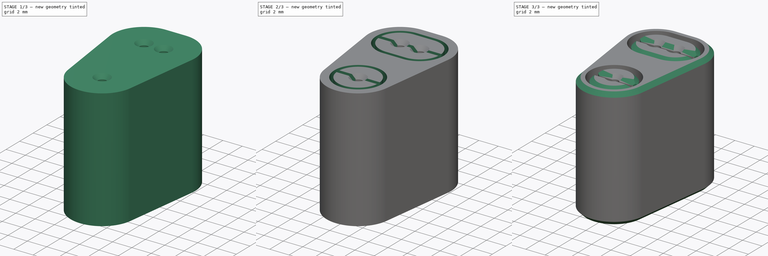
[diagram: build sequence overview — one tinted view per stage of 3, left to right]
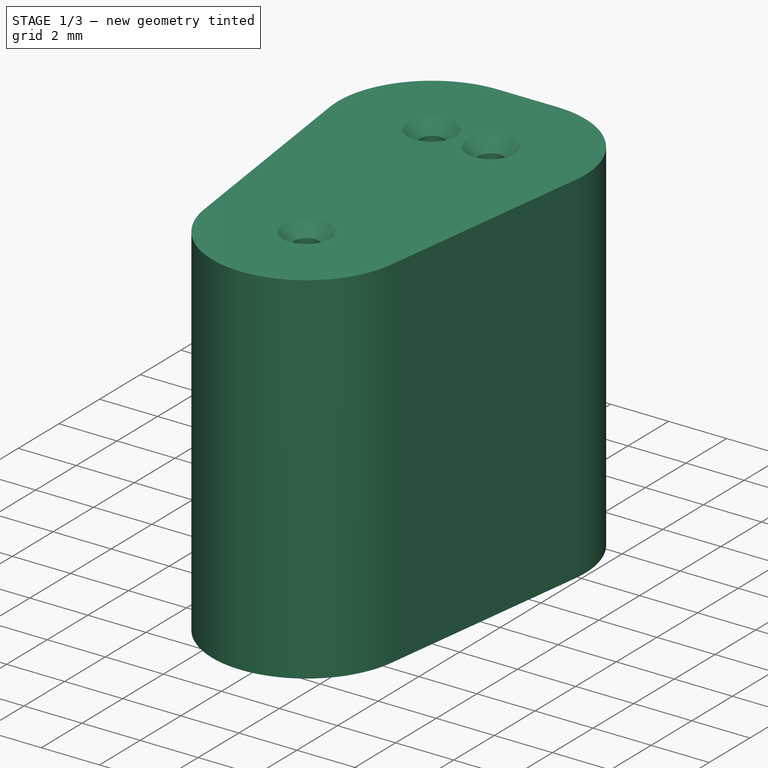
[diagram: stage 1 of 3 — iso view after this stage's code; geometry added in this stage tinted green]
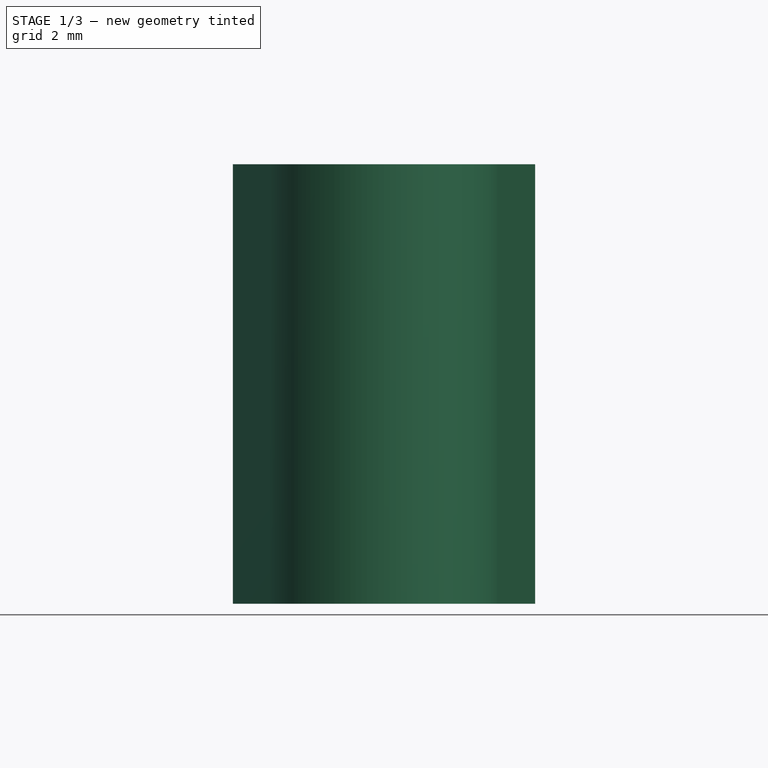
[diagram: stage 1 of 3 — front view after this stage's code; geometry added in this stage tinted green]
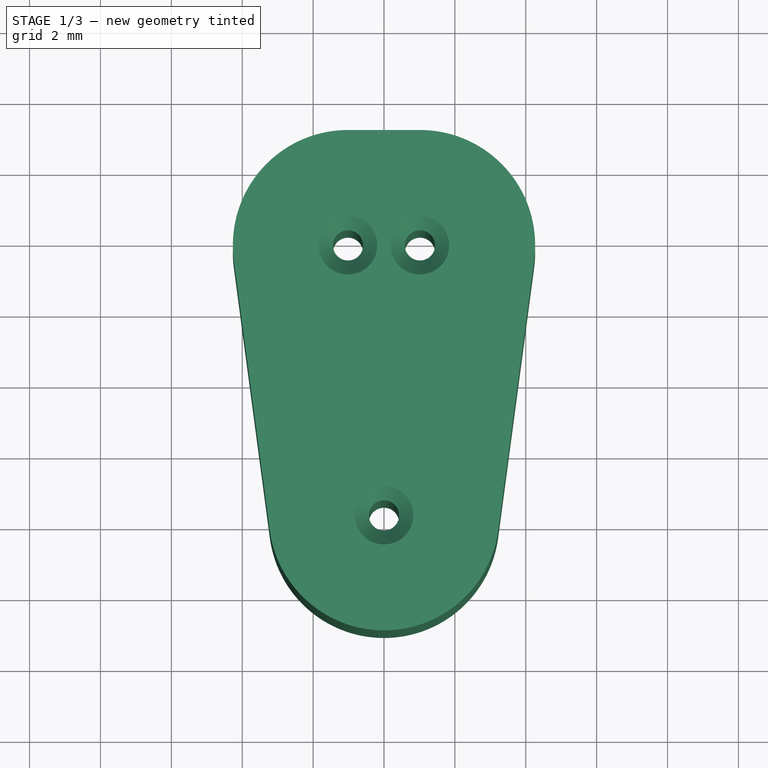
[diagram: stage 1 of 3 — top view after this stage's code; geometry added in this stage tinted green]
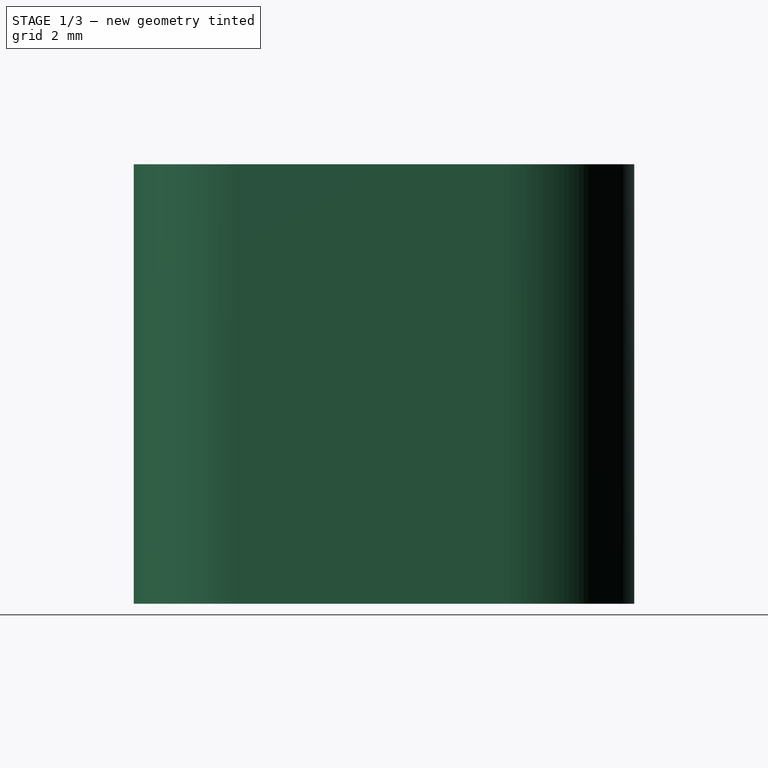
[diagram: stage 1 of 3 — right view after this stage's code; geometry added in this stage tinted green]
FCSTD DOCUMENT  (FreeCAD 1.0R39319 (Git))
Label: TC2050-IDC-NL_lock
License: All rights reserved
LicenseURL: https://en.wikipedia.org/wiki/All_rights_reserved
objects: Sketcher::SketchObject×4, PartDesign::Chamfer×3, PartDesign::Pocket×2, PartDesign::Pad×1, PartDesign::Fillet×1, PartDesign::Body×1
note: 30 computed .brp shape members not serialized (recipe doc carries the construction recipe); baked Part::Feature solids carry a one-line shape summary decoded from their .brp

FEATURE [Sketcher::SketchObject] Sketch001  label="Template"
  ArcFitTolerance = 1e-06
  AttachmentSupport = -> [XY_Plane001]
  FullyConstrained = true
  MakeInternals = false
  MapMode = 5
  sketch-geometry (27):
    g0: Circle CenterX=-1.015 CenterY=3.81 CenterZ=0 NormalX=0 NormalY=0 NormalZ=1 AngleXU=0 Radius=0.7
    g1: Circle CenterX=1.015 CenterY=3.81 CenterZ=0 NormalX=0 NormalY=0 NormalZ=1 AngleXU=0 Radius=0.7
    g2: Circle CenterX=0 CenterY=-3.81 CenterZ=0 NormalX=0 NormalY=0 NormalZ=1 AngleXU=0 Radius=0.7
    g3: LineSegment [constr] StartX=-1.015 StartY=3.81 StartZ=0 EndX=1.015 EndY=3.81 EndZ=0
    g4: LineSegment [constr] StartX=0 StartY=-3.81 StartZ=0 EndX=0 EndY=3.81 EndZ=0
    g5: LineSegment [constr] StartX=-1.70887 StartY=3.71757 StartZ=0 EndX=-0.693871 EndY=-3.90243 EndZ=0
    g6: LineSegment [constr] StartX=1.70887 StartY=3.71757 StartZ=0 EndX=0.693871 EndY=-3.90243 EndZ=0
    g7: LineSegment StartX=-4.23655 StartY=3.38088 StartZ=0 EndX=-3.22155 EndY=-4.23912 EndZ=0
    g8: LineSegment StartX=3.22155 StartY=-4.23912 StartZ=0 EndX=4.23655 EndY=3.38088 EndZ=0
    g9: LineSegment StartX=1.015 StartY=7.06 StartZ=0 EndX=-1.015 EndY=7.06 EndZ=0
    g10: ArcOfCircle CenterX=-1.015 CenterY=3.81 CenterZ=0 NormalX=0 NormalY=0 NormalZ=1 AngleXU=0 Radius=3.25 StartAngle=1.5708 EndAngle=3.27402
    g11: ArcOfCircle CenterX=1.015 CenterY=3.81 CenterZ=0 NormalX=0 NormalY=0 NormalZ=1 AngleXU=0 Radius=3.25 StartAngle=6.15076 EndAngle=7.85398
    g12: ArcOfCircle CenterX=-1.015 CenterY=3.81 CenterZ=0 NormalX=0 NormalY=0 NormalZ=1 AngleXU=0 Radius=2.1 StartAngle=1.5708 EndAngle=4.71239
    g13: ArcOfCircle CenterX=1.015 CenterY=3.81 CenterZ=0 NormalX=0 NormalY=0 NormalZ=1 AngleXU=0 Radius=2.1 StartAngle=4.71239 EndAngle=7.85398
    g14: LineSegment StartX=-1.015 StartY=5.91 StartZ=0 EndX=1.015 EndY=5.91 EndZ=0
    g15: LineSegment StartX=-1.015 StartY=1.71 StartZ=0 EndX=1.015 EndY=1.71 EndZ=0
    g16: Circle CenterX=0 CenterY=-3.81 CenterZ=0 NormalX=0 NormalY=0 NormalZ=1 AngleXU=0 Radius=2.1
    g17: Circle CenterX=-1.015 CenterY=3.81 CenterZ=0 NormalX=0 NormalY=0 NormalZ=1 AngleXU=0 Radius=0.425
    g18: Circle CenterX=1.015 CenterY=3.81 CenterZ=0 NormalX=0 NormalY=0 NormalZ=1 AngleXU=0 Radius=0.425
    g19: Circle CenterX=0 CenterY=-3.81 CenterZ=0 NormalX=0 NormalY=0 NormalZ=1 AngleXU=0 Radius=0.425
    g20: ArcOfCircle CenterX=0 CenterY=-3.81 CenterZ=0 NormalX=0 NormalY=0 NormalZ=1 AngleXU=0 Radius=3.25 StartAngle=3.27402 EndAngle=6.15076
    g21: ArcOfCircle CenterX=-1.015 CenterY=3.81 CenterZ=0 NormalX=0 NormalY=0 NormalZ=1 AngleXU=0 Radius=2.45 StartAngle=1.5708 EndAngle=4.71239
    g22: ArcOfCircle CenterX=1.015 CenterY=3.81 CenterZ=0 NormalX=0 NormalY=0 NormalZ=1 AngleXU=0 Radius=2.45 StartAngle=4.71239 EndAngle=7.85398
    g23: LineSegment StartX=-1.015 StartY=6.26 StartZ=0 EndX=1.015 EndY=6.26 EndZ=0
    g24: LineSegment StartX=-1.015 StartY=1.36 StartZ=0 EndX=1.015 EndY=1.36 EndZ=0
    g25: Circle CenterX=0 CenterY=-3.81 CenterZ=0 NormalX=0 NormalY=0 NormalZ=1 AngleXU=0 Radius=2.45
    g26: LineSegment [constr] StartX=-1.015 StartY=5.91 StartZ=0 EndX=-1.015 EndY=4.51 EndZ=0
  constraints (58):
    c: Coincident(g3,g0)
    c: Coincident(g3,g1)
    c: Horizontal(g3)
    c: Coincident(g4,g2)
    c: Symmetric(g3,g3,g4)
    c: Vertical(g4)
    c: Diameter(g2) = 1.4  'Dia'
    c: DistanceX(g3,g3) = 2.03
    c: Symmetric(g4,g2,g-1)
    c: Tangent(g5,g2) = -1.5708
    c: Tangent(g5,g0) = -1.5708
    c: Tangent(g6,g1) = 1.5708
    c: Tangent(g6,g2) = 1.5708
    c: Equal(g0,g1)
    c: Equal(g1,g2)
    c: Tangent(g7,g10) = -1.5708
    c: Tangent(g8,g11) = -1.5708
    c: Tangent(g9,g11) = -1.5708
    c: Tangent(g9,g10) = -1.5708
    c: Horizontal(g9)
    c: Tangent(g12,g14) = 1.5708
    c: Tangent(g12,g15) = -1.5708
    c: Tangent(g13,g14) = 1.5708
    c: Tangent(g13,g15) = -1.5708
    c: Equal(g12,g13)
    c: Coincident(g12,g0)
    c: Coincident(g13,g1)
    c: Equal(g12,g16)
    c: Coincident(g17,g0)
    c: Coincident(g18,g1)
    c: Coincident(g19,g16)
    c: Coincident(g10,g0)
    c: Coincident(g11,g1)
    c: Coincident(g20,g2)
    c: Equal(g10,g20)
    c: Tangent(g7,g20) = -1.5708
    c: Tangent(g8,g20) = -1.5708
    c: Coincident(g16,g2)
    c: Diameter(g19) = 0.85  'Dia_S'
    c: Tangent(g21,g23) = 1.5708
    c: Tangent(g21,g24) = -1.5708
    c: Tangent(g22,g23) = 1.5708
    c: Tangent(g22,g24) = -1.5708
    c: Equal(g21,g22)
    c: DistanceY(g12,g21) = 0.35
    c: DistanceY(g21,g9) = 0.8
    c: Coincident(g25,g2)
    c: Equal(g25,g22)
    c: Coincident(g1,g22)
    c: Coincident(g21,g0)
    c: DistanceY(g2,g0) = 7.62
    c: Equal(g19,g18)
    c: Equal(g18,g17)
    c: Coincident(g26,g12)
    c: PointOnObject(g26,g0)
    c: Vertical(g26)
    c: DistanceY(g26,g26) = 1.4
    c: Radius(g10) = 3.25
FEATURE [Sketcher::SketchObject] Sketch002
  ArcFitTolerance = 1e-06
  AttachmentSupport = -> [XY_Plane001]
  ExternalGeometry = -> [Sketch001]
  FullyConstrained = true
  MakeInternals = false
  MapMode = 5
  sketch-geometry (9):
    g0: ArcOfCircle CenterX=-1.015 CenterY=3.81 CenterZ=0 NormalX=0 NormalY=0 NormalZ=1 AngleXU=0 Radius=3.25 StartAngle=1.5708 EndAngle=3.27402
    g1: ArcOfCircle CenterX=1.015 CenterY=3.81 CenterZ=0 NormalX=0 NormalY=0 NormalZ=1 AngleXU=0 Radius=3.25 StartAngle=6.15076 EndAngle=7.85398
    g2: ArcOfCircle CenterX=2e-16 CenterY=-3.81 CenterZ=0 NormalX=0 NormalY=0 NormalZ=1 AngleXU=0 Radius=3.25 StartAngle=3.27402 EndAngle=6.15076
    g3: LineSegment StartX=-1.015 StartY=7.06 StartZ=0 EndX=1.015 EndY=7.06 EndZ=0
    g4: LineSegment StartX=4.23655 StartY=3.38088 StartZ=0 EndX=3.22155 EndY=-4.23912 EndZ=0
    g5: LineSegment StartX=-4.23655 StartY=3.38088 StartZ=0 EndX=-3.22155 EndY=-4.23912 EndZ=0
    g6: Circle CenterX=-1.015 CenterY=3.81 CenterZ=0 NormalX=0 NormalY=0 NormalZ=1 AngleXU=0 Radius=0.425
    g7: Circle CenterX=1.015 CenterY=3.81 CenterZ=0 NormalX=0 NormalY=0 NormalZ=1 AngleXU=0 Radius=0.425
    g8: Circle CenterX=2e-16 CenterY=-3.81 CenterZ=0 NormalX=0 NormalY=0 NormalZ=1 AngleXU=0 Radius=0.425
  constraints (21):
    c: Coincident(g0,g-3)
    c: Coincident(g0,g-3)
    c: Coincident(g1,g-4)
    c: Coincident(g1,g-4)
    c: Coincident(g2,g-5)
    c: Coincident(g2,g-5)
    c: Equal(g-4,g1)
    c: Equal(g-3,g0)
    c: Coincident(g3,g0)
    c: Coincident(g3,g1)
    c: Coincident(g4,g1)
    c: Coincident(g4,g2)
    c: Coincident(g5,g0)
    c: Coincident(g5,g2)
    c: Equal(g-5,g2)
    c: Coincident(g6,g0)
    c: Coincident(g7,g1)
    c: Coincident(g8,g2)
    c: Equal(g-6,g8)
    c: Equal(g-7,g7)
    c: Equal(g-8,g6)
FEATURE [PartDesign::Pad] Pad001
  Direction = (0,0,1)
  Length = 12.4
  Length2 = 10
  Profile = -> Sketch002
  ReferenceAxis = -> Sketch002 [N_Axis]
  Refine = true
  Suppressed = false
  Type = 0
FEATURE [Sketcher::SketchObject] Sketch003
  ArcFitTolerance = 1e-06
  AttachmentOffset = pos=(0,0,10.4) rot=(0,0,1;0rad)
  AttachmentSupport = -> [XY_Plane001]
  ExternalGeometry = -> [Sketch001]
  FullyConstrained = true
  MakeInternals = false
  MapMode = 5
  Placement = pos=(0,0,10.4) rot=(0,0,1;0rad)
  expr: .AttachmentOffset.Base.z = <<Pad001>>.Length - 2 mm
  sketch-geometry (5):
    g0: Circle CenterX=0 CenterY=-3.81 CenterZ=0 NormalX=0 NormalY=0 NormalZ=1 AngleXU=0 Radius=0.7
    g1: ArcOfCircle CenterX=-1.015 CenterY=3.81 CenterZ=0 NormalX=0 NormalY=0 NormalZ=1 AngleXU=0 Radius=0.7 StartAngle=1.5708 EndAngle=4.71239
    g2: ArcOfCircle CenterX=1.015 CenterY=3.81 CenterZ=0 NormalX=0 NormalY=0 NormalZ=1 AngleXU=0 Radius=0.7 StartAngle=4.71239 EndAngle=7.85398
    g3: LineSegment StartX=-1.015 StartY=4.51 StartZ=0 EndX=1.015 EndY=4.51 EndZ=0
    g4: LineSegment StartX=-1.015 StartY=3.11 StartZ=0 EndX=1.015 EndY=3.11 EndZ=0
  constraints (10):
    c: Coincident(g0,g-5)
    c: Equal(g-5,g0)
    c: Tangent(g1,g3) = 1.5708
    c: Tangent(g1,g4) = -1.5708
    c: Tangent(g2,g3) = 1.5708
    c: Tangent(g2,g4) = -1.5708
    c: Equal(g1,g2)
    c: Equal(g1,g-3)
    c: Coincident(g1,g-3)
    c: Coincident(g2,g-4)
FEATURE [Sketcher::SketchObject] Sketch004
  ArcFitTolerance = 1e-06
  AttachmentOffset = pos=(0,0,12.4) rot=(0,0,1;0rad)
  AttachmentSupport = -> [XY_Plane001]
  ExternalGeometry = -> [Sketch001]
  FullyConstrained = true
  MakeInternals = false
  MapMode = 5
  Placement = pos=(0,0,12.4) rot=(0,0,1;0rad)
  expr: .AttachmentOffset.Base.z = <<Pad001>>.Length
  sketch-geometry (26):
    g0: ArcOfCircle CenterX=-1.015 CenterY=3.81 CenterZ=0 NormalX=0 NormalY=0 NormalZ=1 AngleXU=0 Radius=2.45 StartAngle=1.5708 EndAngle=4.71239
    g1: ArcOfCircle CenterX=1.015 CenterY=3.81 CenterZ=0 NormalX=0 NormalY=0 NormalZ=1 AngleXU=0 Radius=2.45 StartAngle=4.71239 EndAngle=7.85398
    g2: Circle CenterX=0 CenterY=-3.81 CenterZ=0 NormalX=0 NormalY=0 NormalZ=1 AngleXU=0 Radius=2.45
    g3: LineSegment StartX=-1.015 StartY=1.36 StartZ=0 EndX=1.015 EndY=1.36 EndZ=0
    g4: LineSegment StartX=-1.015 StartY=1.71 StartZ=0 EndX=1.015 EndY=1.71 EndZ=0
    g5: LineSegment StartX=-1.015 StartY=5.91 StartZ=0 EndX=1.015 EndY=5.91 EndZ=0
    g6: LineSegment StartX=-1.015 StartY=6.26 StartZ=0 EndX=1.015 EndY=6.26 EndZ=0
    g7: LineSegment StartX=-3.10423 StartY=4.0225 StartZ=0 EndX=3.10422 EndY=4.0225 EndZ=0
    g8: LineSegment StartX=-3.10423 StartY=3.5975 StartZ=0 EndX=3.10422 EndY=3.5975 EndZ=0
    g9: ArcOfCircle CenterX=-1.01501 CenterY=3.81 CenterZ=0 NormalX=0 NormalY=0 NormalZ=1 AngleXU=0 Radius=2.1 StartAngle=1.57079 EndAngle=3.04023
    g10: ArcOfCircle [constr] CenterX=-1.01501 CenterY=3.81 CenterZ=0 NormalX=0 NormalY=0 NormalZ=1 AngleXU=0 Radius=2.1 StartAngle=3.04023 EndAngle=3.24296
    g11: ArcOfCircle CenterX=-1.01501 CenterY=3.81 CenterZ=0 NormalX=0 NormalY=0 NormalZ=1 AngleXU=0 Radius=2.1 StartAngle=3.24296 EndAngle=4.71239
    g12: ArcOfCircle CenterX=1.015 CenterY=3.81 CenterZ=0 NormalX=0 NormalY=0 NormalZ=1 AngleXU=0 Radius=2.1 StartAngle=4.71239 EndAngle=6.18182
    g13: ArcOfCircle [constr] CenterX=1.015 CenterY=3.81 CenterZ=0 NormalX=0 NormalY=0 NormalZ=1 AngleXU=0 Radius=2.1 StartAngle=6.18182 EndAngle=6.38455
    g14: ArcOfCircle CenterX=1.015 CenterY=3.81 CenterZ=0 NormalX=0 NormalY=0 NormalZ=1 AngleXU=0 Radius=2.1 StartAngle=0.101364 EndAngle=1.5708
    g15: ArcOfCircle CenterX=0 CenterY=-3.81 CenterZ=0 NormalX=0 NormalY=0 NormalZ=1 AngleXU=0 Radius=2.1 StartAngle=0.101364 EndAngle=3.04023
    g16: ArcOfCircle [constr] CenterX=0 CenterY=-3.81 CenterZ=0 NormalX=0 NormalY=0 NormalZ=1 AngleXU=0 Radius=2.1 StartAngle=3.04023 EndAngle=3.24296
    g17: ArcOfCircle CenterX=0 CenterY=-3.81 CenterZ=0 NormalX=0 NormalY=0 NormalZ=1 AngleXU=0 Radius=2.1 StartAngle=3.24296 EndAngle=6.18182
    g18: ArcOfCircle [constr] CenterX=0 CenterY=-3.81 CenterZ=0 NormalX=0 NormalY=0 NormalZ=1 AngleXU=0 Radius=2.1 StartAngle=6.18182 EndAngle=6.38455
    g19: LineSegment StartX=-2.08922 StartY=-3.5975 StartZ=0 EndX=2.08922 EndY=-3.5975 EndZ=0
    g20: LineSegment StartX=-2.08922 StartY=-4.0225 StartZ=0 EndX=2.08922 EndY=-4.0225 EndZ=0
    g21: LineSegment [constr] StartX=-1.015 StartY=4.0225 StartZ=0 EndX=-1.015 EndY=3.81 EndZ=0
    g22: LineSegment [constr] StartX=-1.015 StartY=3.81 StartZ=0 EndX=-1.015 EndY=3.5975 EndZ=0
    g23: LineSegment [constr] StartX=0 StartY=-3.5975 StartZ=0 EndX=0 EndY=-3.81 EndZ=0
    g24: LineSegment [constr] StartX=0 StartY=-3.81 StartZ=0 EndX=0 EndY=-4.0225 EndZ=0
    g25: LineSegment [constr] StartX=-1.015 StartY=4.0225 StartZ=0 EndX=-1.015 EndY=4.235 EndZ=0
  constraints (75):
    c: Coincident(g9,g-4)
    c: Coincident(g11,g-4)
    c: Coincident(g0,g-3)
    c: Coincident(g0,g-3)
    c: Coincident(g14,g-6)
    c: Coincident(g12,g-6)
    c: Coincident(g1,g-5)
    c: Coincident(g1,g-5)
    c: Equal(g-3,g0)
    c: Equal(g-5,g1)
    c: Coincident(g2,g-8)
    c: Coincident(g16,g2)
    c: Equal(g-7,g2)
    c: Coincident(g3,g0)
    c: Coincident(g3,g1)
    c: Coincident(g4,g11)
    c: Coincident(g4,g12)
    c: Coincident(g5,g9)
    c: Coincident(g5,g14)
    c: Coincident(g6,g0)
    c: Coincident(g6,g1)
    c: Horizontal(g7)
    c: Horizontal(g8)
    c: Equal(g8,g7)
    c: Coincident(g9,g10)
    c: Coincident(g9,g10)
    c: Equal(g-4,g9)
    c: Coincident(g10,g11)
    c: Coincident(g10,g11)
    c: PointOnObject(g7,g10)
    c: PointOnObject(g8,g10)
    c: Coincident(g12,g13)
    c: Coincident(g12,g13)
    c: Equal(g-6,g12)
    c: Coincident(g13,g14)
    c: Coincident(g13,g14)
    c: Coincident(g7,g13)
    c: Coincident(g12,g8)
    c: PointOnObject(g10,g8)
    c: PointOnObject(g9,g7)
    c: DistanceY(g8,g7) = 0.425
    c: PointOnObject(g21,g7)
    c: PointOnObject(g22,g8)
    c: Coincident(g18,g15)
    c: Coincident(g16,g15)
    c: Coincident(g16,g17)
    c: Coincident(g16,g17)
    c: Equal(g-8,g16)
    c: Coincident(g17,g18)
    c: Coincident(g17,g18)
    c: Coincident(g19,g15)
    c: Coincident(g19,g15)
    c: Horizontal(g19)
    c: Coincident(g20,g16)
    c: Coincident(g20,g17)
    c: Horizontal(g20)
    c: Equal(g19,g20)
    c: PointOnObject(g23,g19)
    c: PointOnObject(g24,g20)
    c: PointOnObject(g16,g19)
    c: Coincident(g21,g22)
    c: Vertical(g21)
    c: Vertical(g22)
    c: PointOnObject(g0,g21)
    c: Coincident(g23,g24)
    c: Vertical(g23)
    c: Vertical(g24)
    c: PointOnObject(g2,g23)
    c: Equal(g22,g21)
    c: Equal(g23,g24)
    c: Equal(g22,g23)
    c: Coincident(g25,g21)
    c: PointOnObject(g25,g-9)
    c: Vertical(g25)
    c: Equal(g25,g21)
FEATURE [PartDesign::Chamfer] Chamfer001
  Angle = 45
  Base = -> Pad001 [Edge24,Edge21,Edge27]
  BaseFeature = -> Pad001
  ChamferType = 0
  FlipDirection = false
  Refine = true
  Size = 0.4
  Size2 = 1
  SupportTransform = false
  Suppressed = false
  UseAllEdges = false
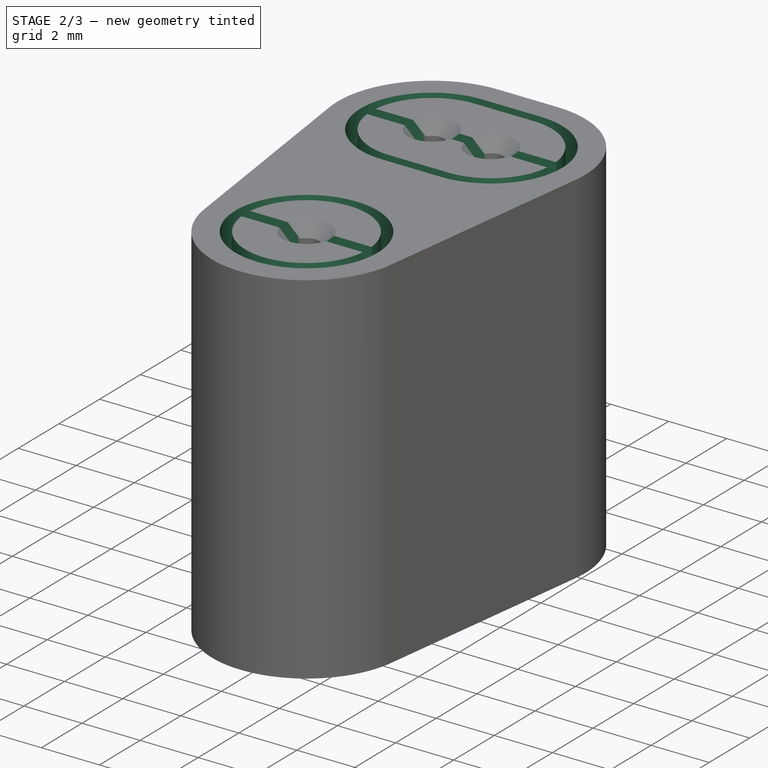
[diagram: stage 2 of 3 — iso view after this stage's code; geometry added in this stage tinted green]
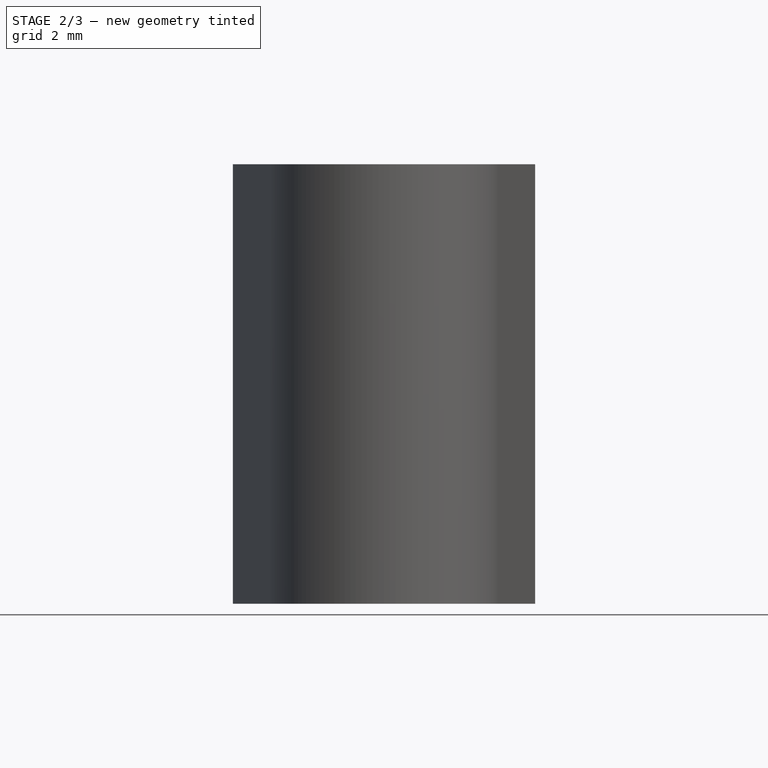
[diagram: stage 2 of 3 — front view after this stage's code; geometry added in this stage tinted green]
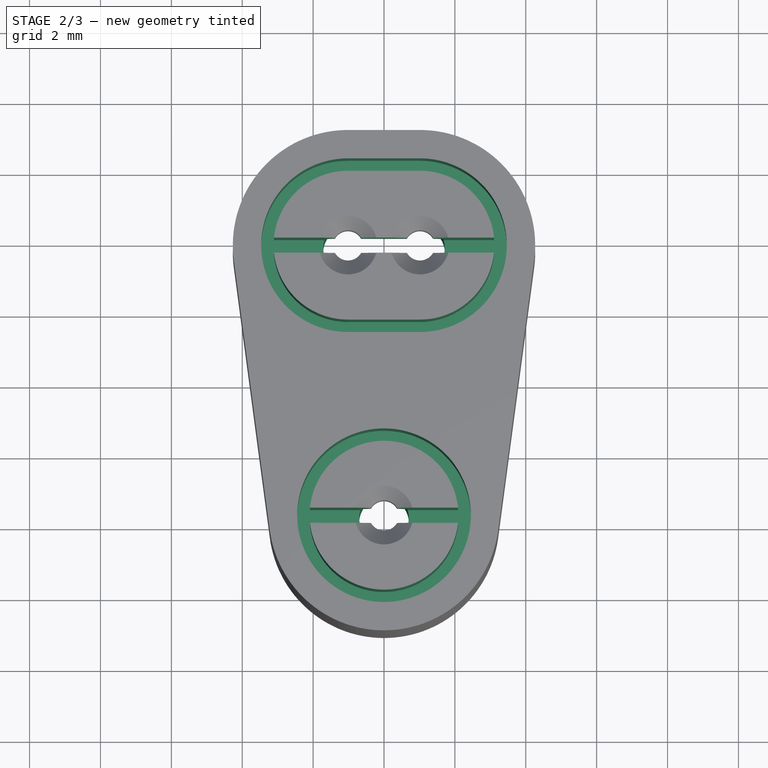
[diagram: stage 2 of 3 — top view after this stage's code; geometry added in this stage tinted green]
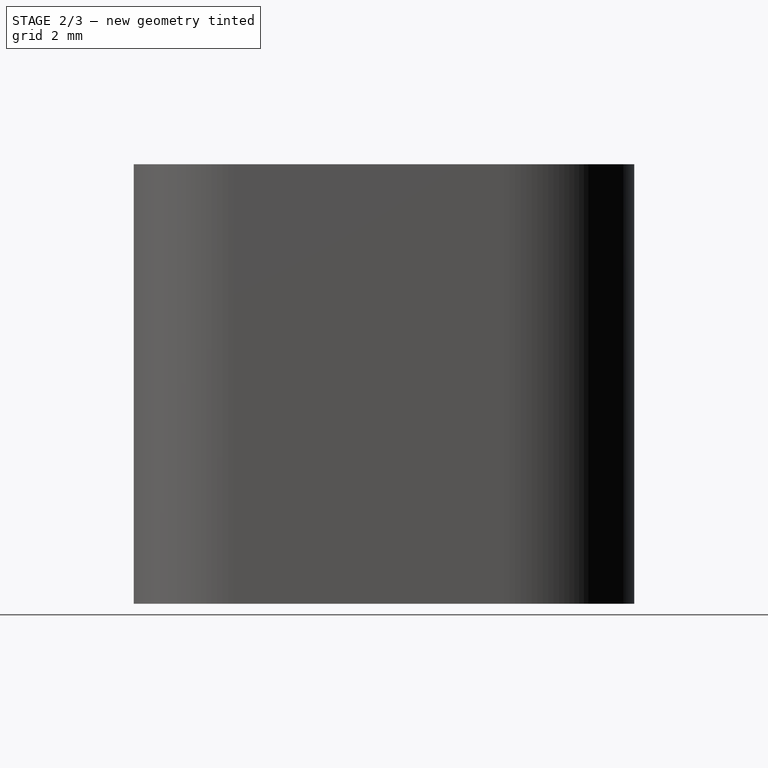
[diagram: stage 2 of 3 — right view after this stage's code; geometry added in this stage tinted green]
FEATURE [PartDesign::Pocket] Pocket
  BaseFeature = -> Chamfer001
  Direction = (0,0,-1)
  Length = 5
  Length2 = 5
  Profile = -> Sketch003
  ReferenceAxis = -> Sketch003 [N_Axis]
  Refine = true
  Suppressed = false
  Type = 1
FEATURE [PartDesign::Chamfer] Chamfer
  Angle = 45
  Base = -> Pocket [Edge7,Edge45]
  BaseFeature = -> Pocket
  ChamferType = 0
  FlipDirection = false
  Refine = true
  Size = 0.265
  Size2 = 1
  SupportTransform = false
  Suppressed = false
  UseAllEdges = false
  expr: Size = (<<Template>>.Constraints.Dia - <<Template>>.Constraints.Dia_S) / 2 - 0.01 mm
FEATURE [PartDesign::Pocket] Pocket001
  BaseFeature = -> Chamfer
  Direction = (0,0,-1)
  Length = 4
  Length2 = 5
  Profile = -> Sketch004
  ReferenceAxis = -> Sketch004 [N_Axis]
  Refine = true
  Suppressed = false
  Type = 0
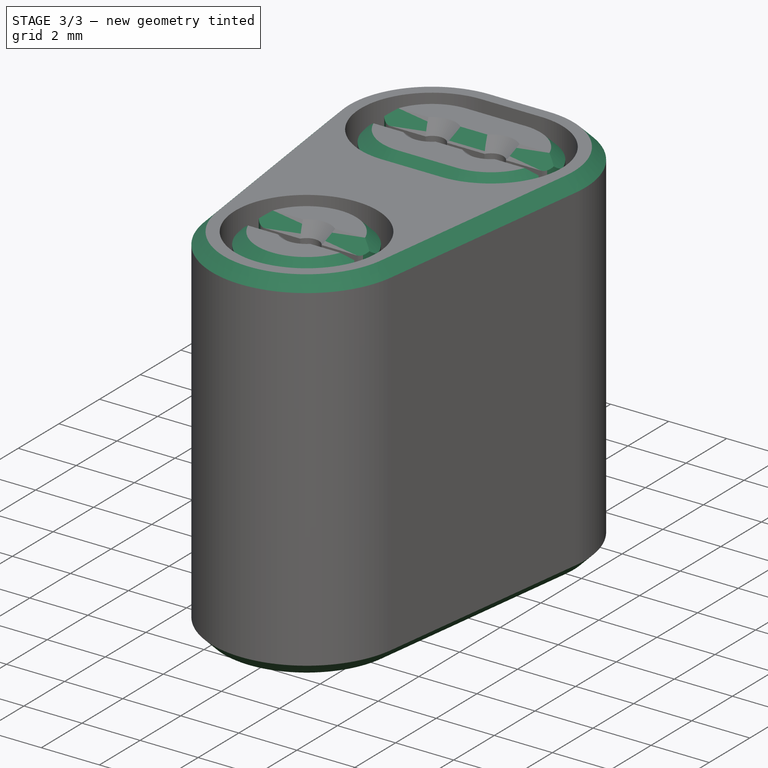
[diagram: stage 3 of 3 — iso view after this stage's code; geometry added in this stage tinted green]
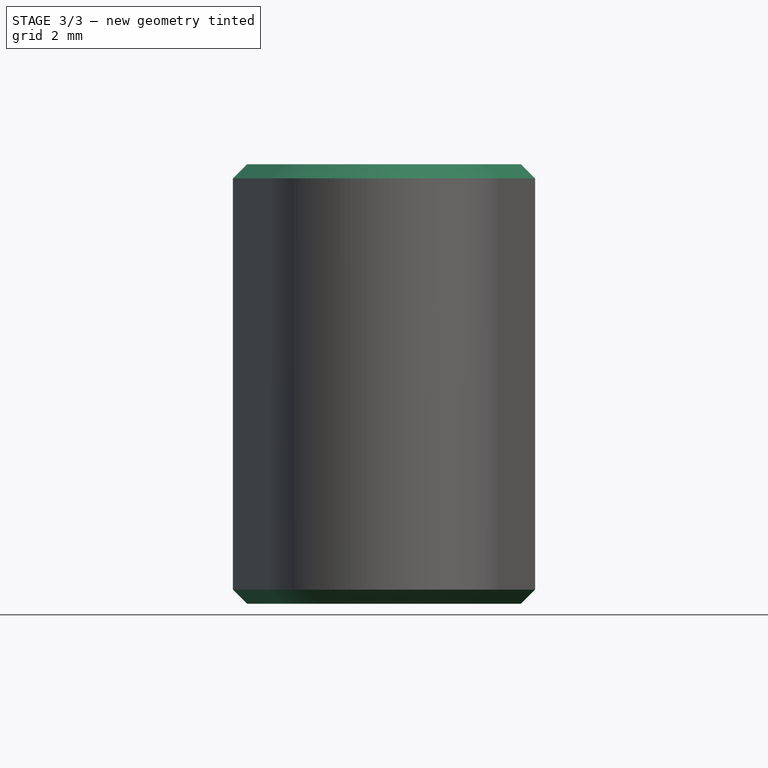
[diagram: stage 3 of 3 — front view after this stage's code; geometry added in this stage tinted green]
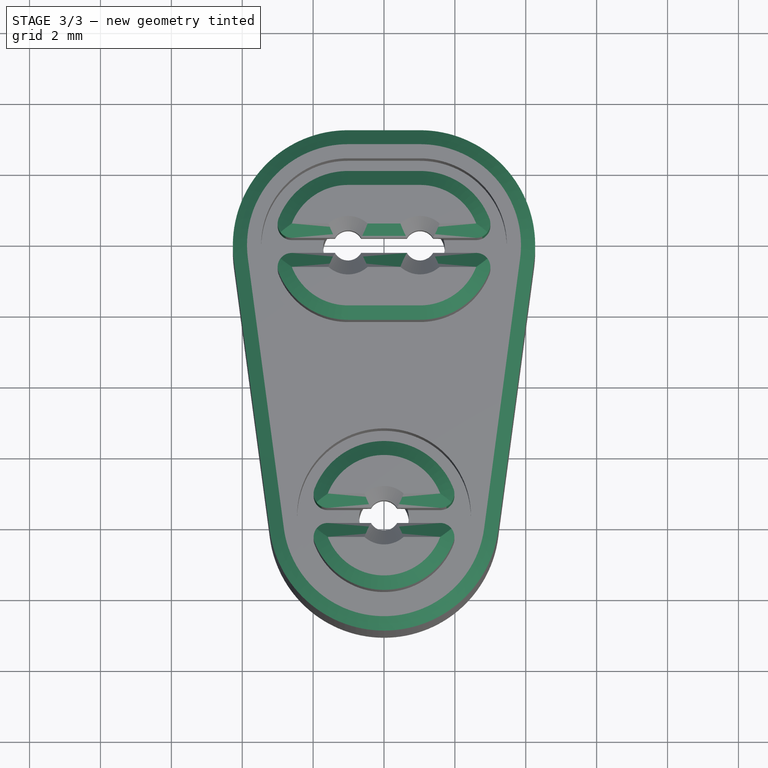
[diagram: stage 3 of 3 — top view after this stage's code; geometry added in this stage tinted green]
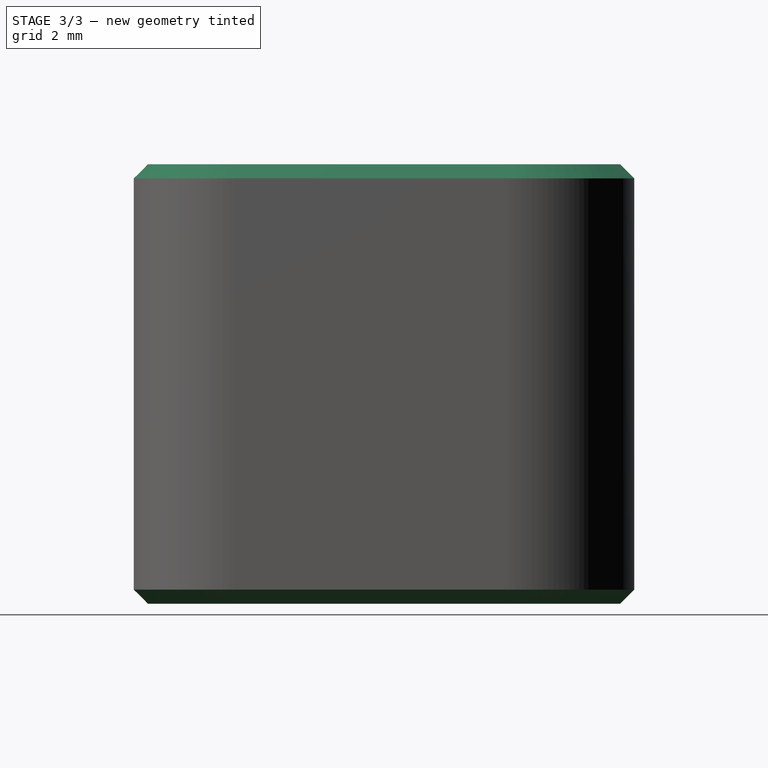
[diagram: stage 3 of 3 — right view after this stage's code; geometry added in this stage tinted green]
FEATURE [PartDesign::Chamfer] Chamfer002
  Angle = 45
  Base = -> Pocket001 [Edge79,Edge133,Edge96,Edge99,Edge44,Edge31,Edge22,Edge14,Edge156,Edge148,Edge175,Edge169,Edge161,Edge176,Face19,Edge113]
  BaseFeature = -> Pocket001
  ChamferType = 0
  FlipDirection = false
  Refine = true
  Size = 0.4
  Size2 = 1
  SupportTransform = false
  Suppressed = false
  UseAllEdges = false
FEATURE [PartDesign::Fillet] Fillet
  Base = -> Chamfer002 [Edge75,Edge85,Edge1,Edge205,Edge210,Edge64,Edge216,Edge203]
  BaseFeature = -> Chamfer002
  Radius = 0.4
  Refine = true
  SupportTransform = false
  Suppressed = false
  UseAllEdges = false
FEATURE [PartDesign::Body] Body001
  AllowCompound = false
  Group = -> [Sketch001,Sketch002,Pad001,Sketch003,Chamfer001,Pocket,Sketch004,Chamfer,Pocket001,Chamfer002,Fillet]
  Origin = -> Origin001
  Tip = -> Fillet
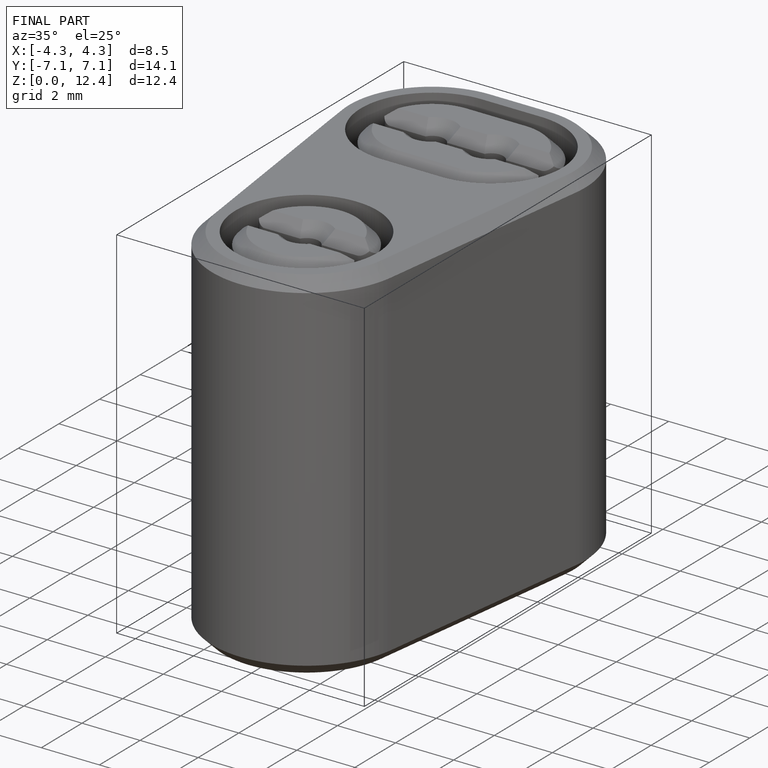
[diagram: finished part — iso view with bounding-box wireframe]
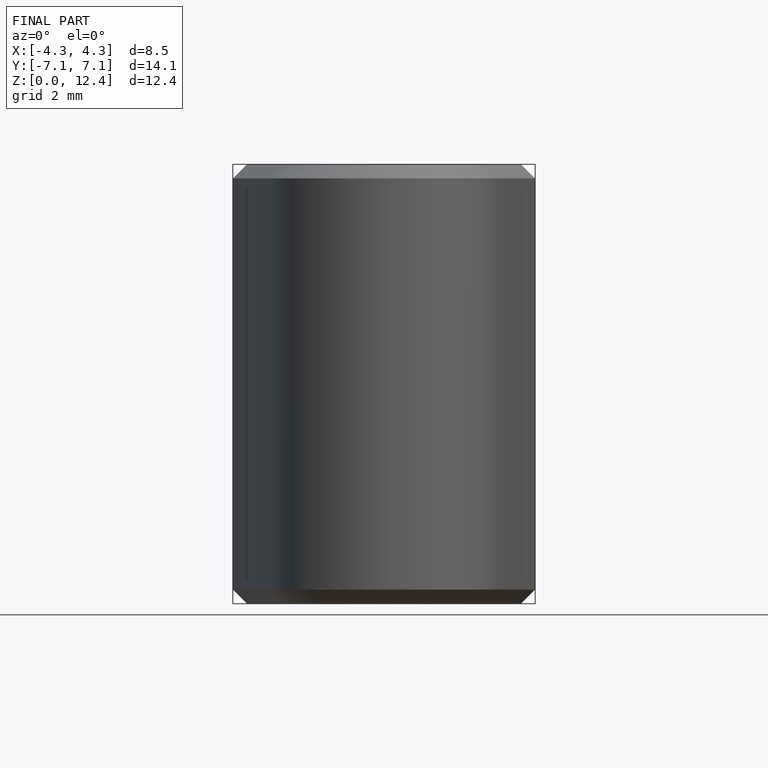
[diagram: finished part — front view with bounding-box wireframe]
